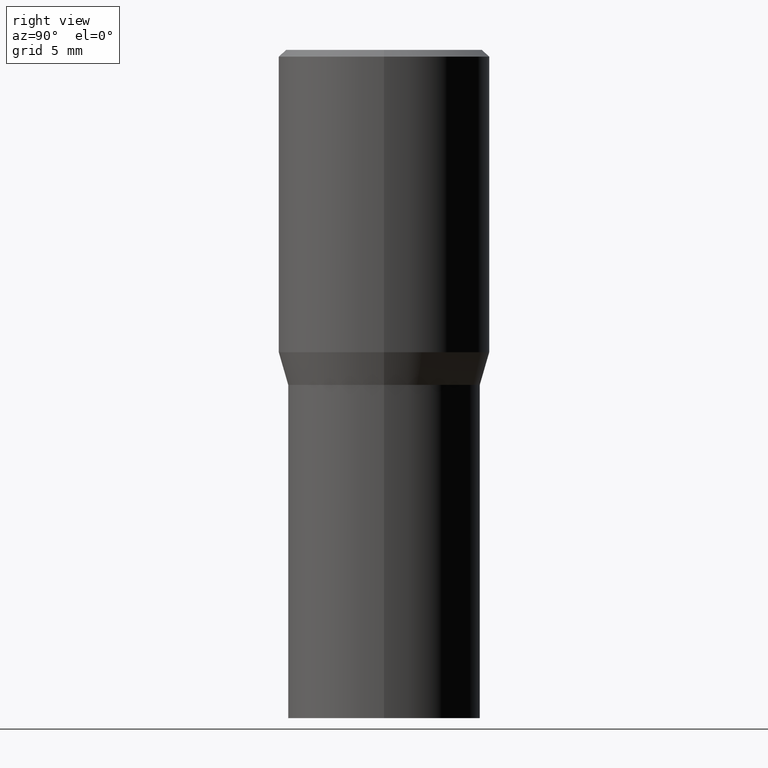
[diagram: clean part render]
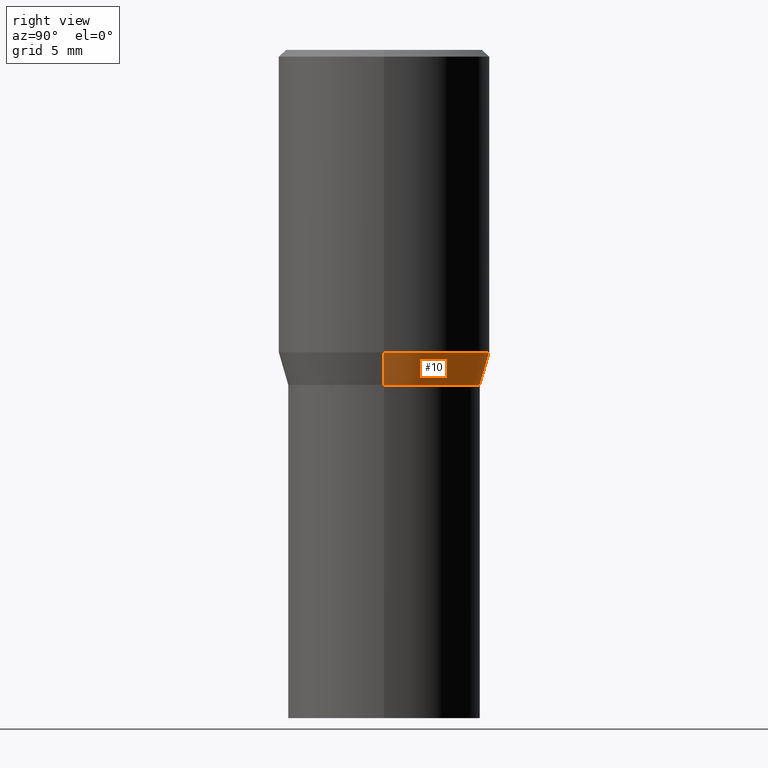
[diagram: same view with one face highlighted and labeled with its STEP entity id]
A machine part, right view. The second image highlights one B-rep face of the part: STEP entity #10.
In plain terms, the highlighted conical surface has half-angle 15 deg.
Its self-contained STEP definition (entity closure, byte-faithful):
#10 = ADVANCED_FACE ( 'NONE', ( #53 ), #48, .T. ) ;
#16 = AXIS2_PLACEMENT_3D ( 'NONE', #93, #60, #86 ) ;
#28 = CARTESIAN_POINT ( 'NONE',  ( 1.838992542251222813E-29, -2.625593966810045497E-15, -0.7520000000000001128 ) ) ;
#48 = CONICAL_SURFACE ( 'NONE', #16, 0.2165500000000000203, 0.2617993877991505736 ) ;
#53 = FACE_OUTER_BOUND ( 'NONE', #395, .T. ) ;
#55 = VERTEX_POINT ( 'NONE', #366 ) ;
#60 = DIRECTION ( 'NONE',  ( -2.445468806185136597E-29, 3.491481338843145583E-15, 1.000000000000000000 ) ) ;
#86 = DIRECTION ( 'NONE',  ( 1.000000000000000000, -6.982962677686266711E-15, 0.000000000000000000 ) ) ;
#93 = CARTESIAN_POINT ( 'NONE',  ( 1.838992542251222813E-29, -2.625593966810045497E-15, -0.7520000000000001128 ) ) ;
#116 = AXIS2_PLACEMENT_3D ( 'NONE', #28, #165, #377 ) ;
#120 = DIRECTION ( 'NONE',  ( -2.445468806185136597E-29, 3.491481338843145583E-15, 1.000000000000000000 ) ) ;
#147 = LINE ( 'NONE', #218, #382 ) ;
#157 = AXIS2_PLACEMENT_3D ( 'NONE', #228, #120, #411 ) ;
#165 = DIRECTION ( 'NONE',  ( -2.445468806185136597E-29, 3.491481338843145583E-15, 1.000000000000000000 ) ) ;
#166 = CIRCLE ( 'NONE', #157, 0.2361999999999999933 ) ;
#176 = EDGE_CURVE ( 'NONE', #322, #240, #401, .T. ) ;
#185 = EDGE_CURVE ( 'NONE', #280, #55, #147, .T. ) ;
#186 = CARTESIAN_POINT ( 'NONE',  ( 0.2165500000000000203, -4.137754534663007109E-15, -0.7520000000000001128 ) ) ;
#218 = CARTESIAN_POINT ( 'NONE',  ( 0.2165500000000000203, -4.137754534663007109E-15, -0.7520000000000001128 ) ) ;
#228 = CARTESIAN_POINT ( 'NONE',  ( 1.659654580432621677E-29, -2.369546886817807077E-15, -0.6786652016312719748 ) ) ;
#240 = VERTEX_POINT ( 'NONE', #299 ) ;
#245 = CARTESIAN_POINT ( 'NONE',  ( -0.2165500000000000203, -1.086913672521548598E-15, -0.7520000000000001128 ) ) ;
#280 = VERTEX_POINT ( 'NONE', #186 ) ;
#299 = CARTESIAN_POINT ( 'NONE',  ( -0.2361999999999999933, -6.912449449524502887E-16, -0.6786652016312719748 ) ) ;
#315 = DIRECTION ( 'NONE',  ( -0.2588190451025218497, 5.211531920934553408E-15, 0.9659258262890679791 ) ) ;
#316 = EDGE_CURVE ( 'NONE', #55, #240, #166, .T. ) ;
#320 = VECTOR ( 'NONE', #315, 39.37007874015748143 ) ;
#322 = VERTEX_POINT ( 'NONE', #332 ) ;
#324 = ORIENTED_EDGE ( 'NONE', *, *, #176, .T. ) ;
#332 = CARTESIAN_POINT ( 'NONE',  ( -0.2165500000000000203, -8.890793087369993447E-16, -0.7520000000000001128 ) ) ;
#366 = CARTESIAN_POINT ( 'NONE',  ( 0.2361999999999999933, -4.018922671287303208E-15, -0.6786652016312719748 ) ) ;
#377 = DIRECTION ( 'NONE',  ( 1.000000000000000000, -6.982962677686266711E-15, 0.000000000000000000 ) ) ;
#382 = VECTOR ( 'NONE', #393, 39.37007874015748143 ) ;
#386 = ORIENTED_EDGE ( 'NONE', *, *, #316, .F. ) ;
#389 = EDGE_CURVE ( 'NONE', #280, #322, #445, .T. ) ;
#393 = DIRECTION ( 'NONE',  ( 0.2588190451025218497, 1.565188264969618221E-15, 0.9659258262890679791 ) ) ;
#394 = ORIENTED_EDGE ( 'NONE', *, *, #389, .T. ) ;
#395 = EDGE_LOOP ( 'NONE', ( #394, #324, #386, #399 ) ) ;
#399 = ORIENTED_EDGE ( 'NONE', *, *, #185, .F. ) ;
#401 = LINE ( 'NONE', #245, #320 ) ;
#411 = DIRECTION ( 'NONE',  ( 1.000000000000000000, -6.982962677686266711E-15, 0.000000000000000000 ) ) ;
#445 = CIRCLE ( 'NONE', #116, 0.2165500000000000203 ) ;